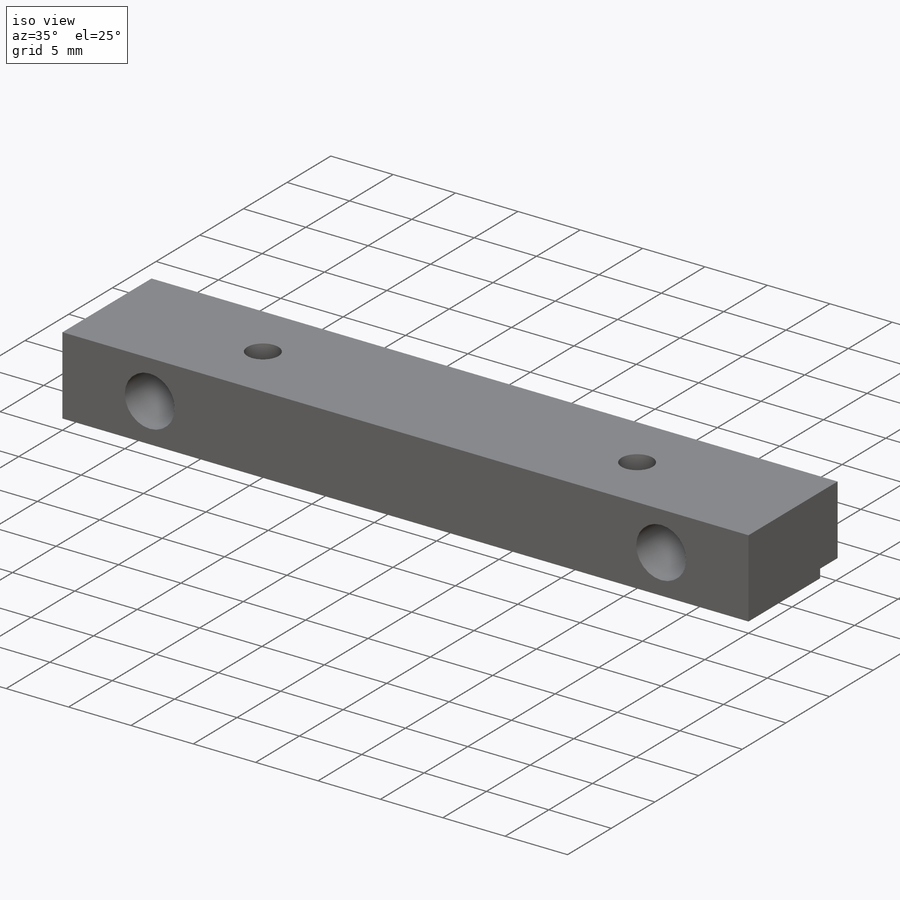
[diagram: iso view]
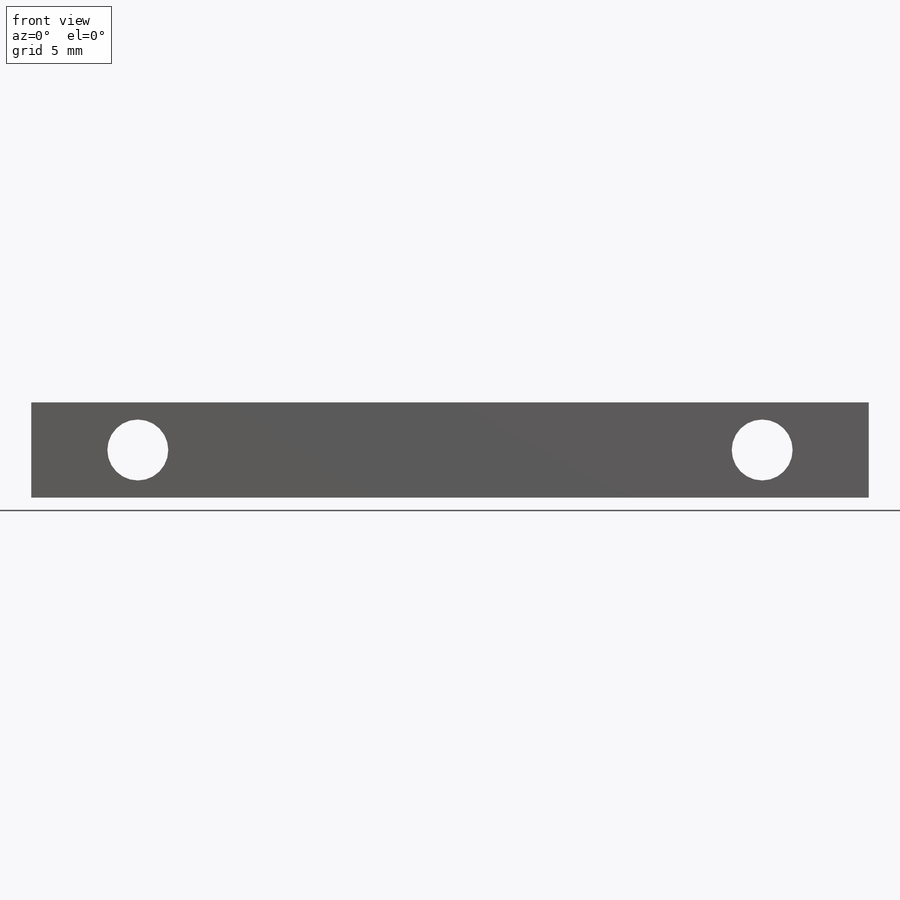
[diagram: front view]
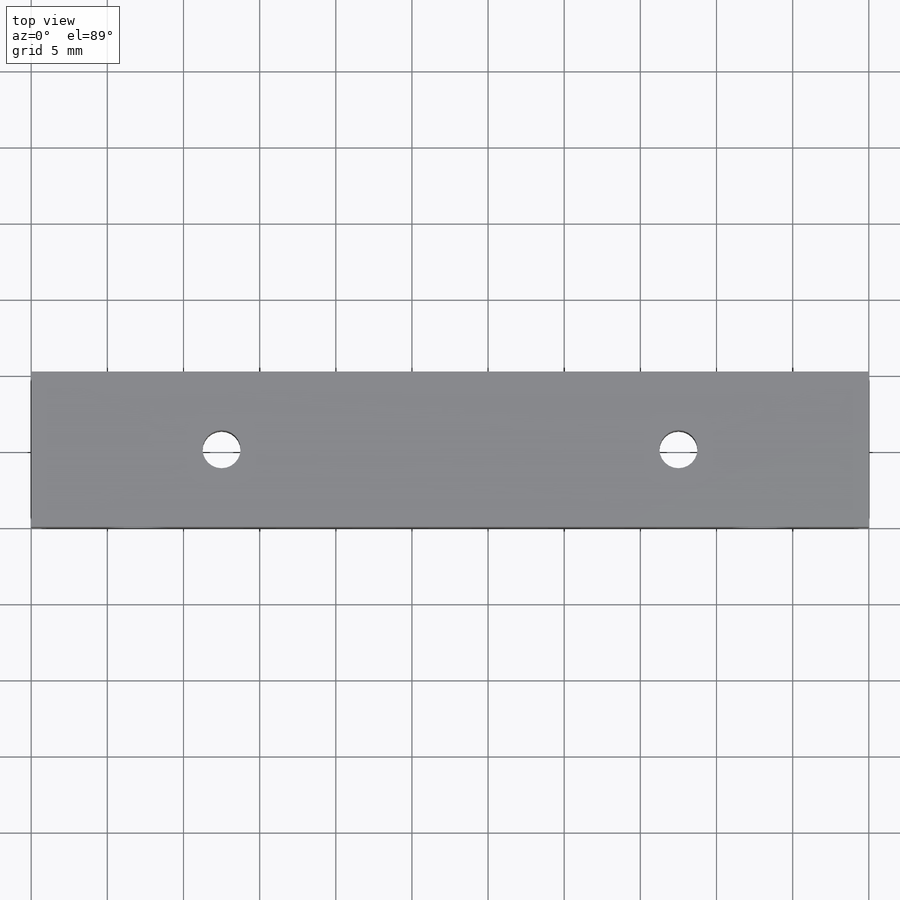
[diagram: top view]
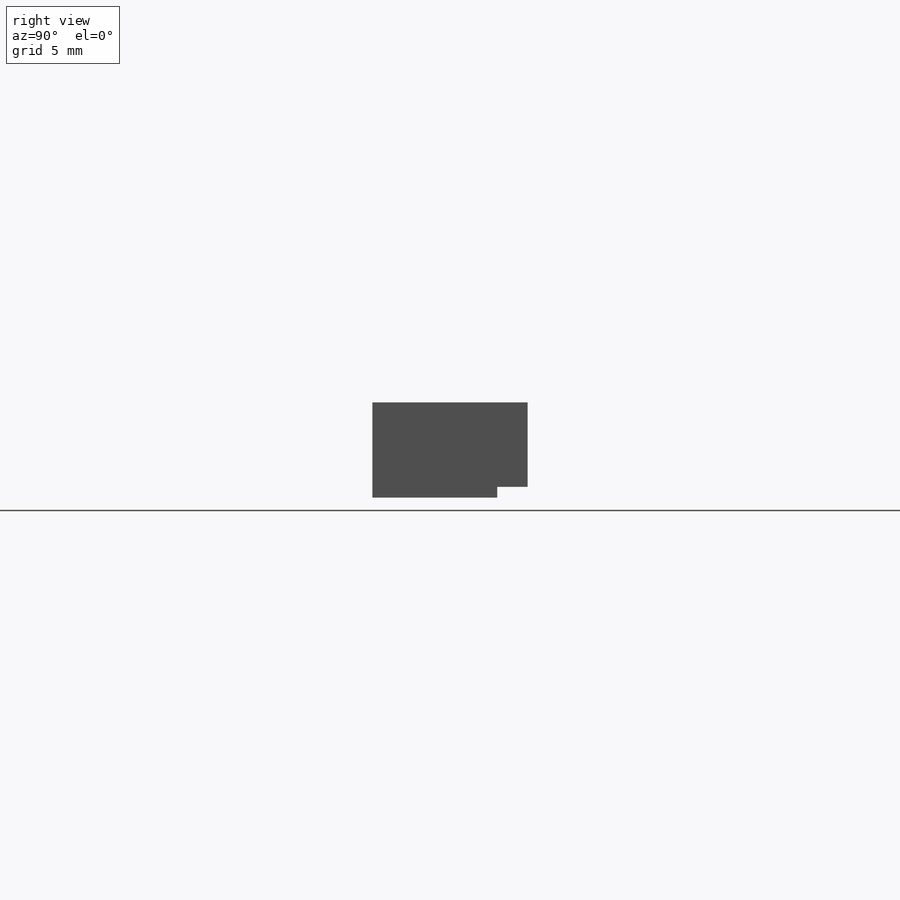
[diagram: right view]
SOLIDWORKS PART (.sldprt)
format: sldprt  version: not decoded by parser v0  size: 207,872 bytes
history: native  units: mm
features: sketch x6, hole x2, material x1, extrude x1, cut_extrude x1 (+16 scaffold rows collapsed)
feature tree (27):
  scaffold x16  (default folders/planes/origin — collapsed)
  material  "Material <not specified>"
  sketch  "Sketch1"  dims[D1=55.0mm D2=10.2mm]
  extrude  "Boss-Extrude1"  Depth=6.25mm
  hole  "Ø4.0 (4) Diameter Hole1"  Diameter=4mm Depth=10.2mm
  sketch  "Sketch3"  dims[D1=3.125mm D2=41.0mm D3=8.75mm]
  sketch  "Sketch2"  dims[hole-wizard template sketch: 60 standard entries collapsed; hole parameters kept: c18.Thru Hole Depth=10.2mm]
  hole  "Ø2.5 (2.5) Diameter Hole1"  Diameter=2.5mm Depth=6.25mm
  sketch  "Sketch5"  dims[c1.D1=30.0mm c1.D2=14.5mm c1.D3=~1.975595mm c2.D1=30.0mm]
  sketch  "Sketch4"  dims[hole-wizard template sketch: 60 standard entries collapsed; hole parameters kept: c18.Thru Hole Depth=6.25mm]
  sketch  "Sketch6"  dims[D1=0.7mm D2=2.0mm]
  cut_extrude  "Cut-Extrude1"  [1 undecoded]
decode coverage: 9 of 10 modeling features carry decoded parameters
note: ~ marks probable driven/reference dimensions
note: 1 parameter value undecoded
note: suppression state not decoded; provenance and decode notes live in map.json
